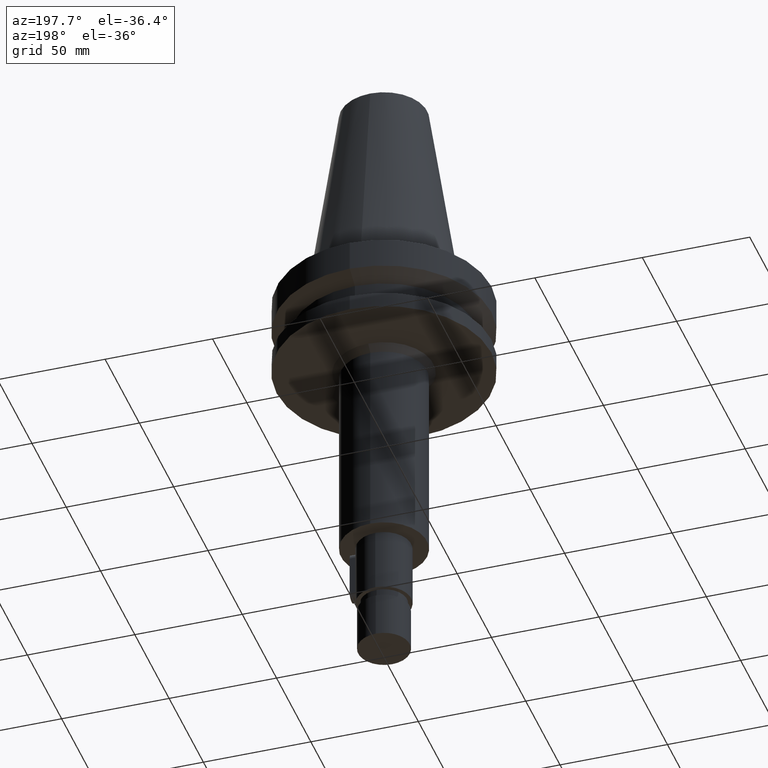
[diagram: clean part render]
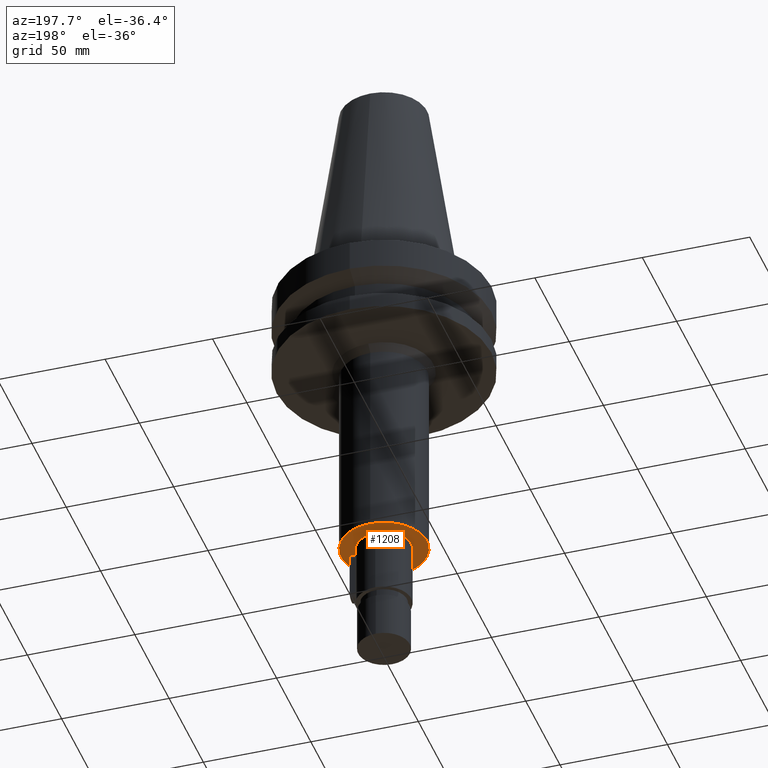
[diagram: same view with one face highlighted and labeled with its STEP entity id]
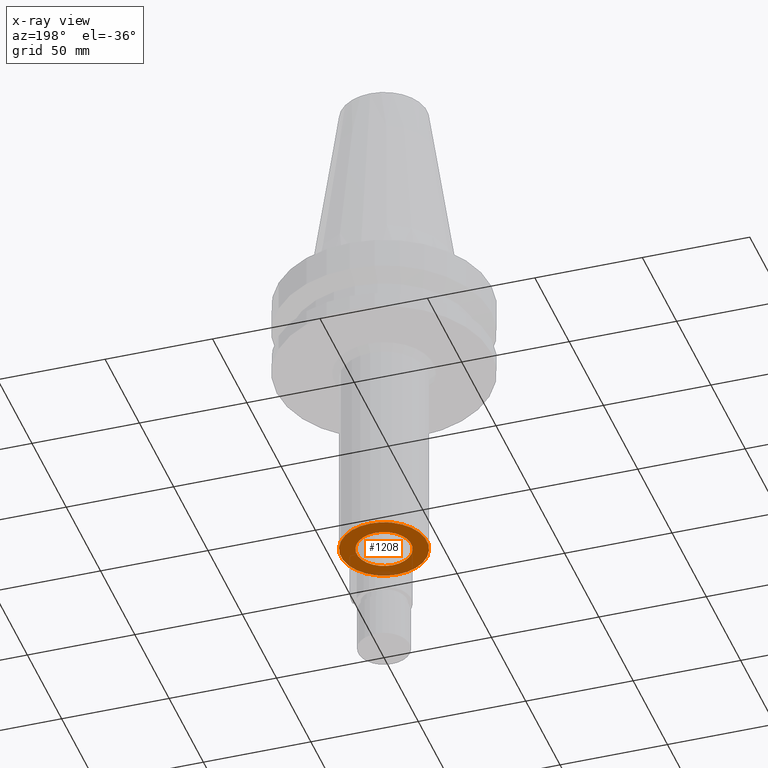
[diagram: x-ray of the same camera — body ghosted, the highlighted face saturated]
A machine part, auxiliary view. The second image highlights one B-rep face of the part: STEP entity #1208.
The next image is the same camera in x-ray: the body ghosted, the highlighted face saturated — about 4% of this face is hidden behind the body in this view.
In plain terms, the highlighted planar face has unit normal (0, 0, -1).
Its self-contained STEP definition (entity closure, byte-faithful):
#412=CARTESIAN_POINT('',(0.E0,2.650013208675E-14,-1.35E2));
#413=DIRECTION('',(0.E0,0.E0,1.E0));
#414=DIRECTION('',(0.E0,1.E0,0.E0));
#415=AXIS2_PLACEMENT_3D('',#412,#413,#414);
#420=CARTESIAN_POINT('',(0.E0,2.650013208675E-14,-1.35E2));
#421=DIRECTION('',(0.E0,0.E0,1.E0));
#422=DIRECTION('',(0.E0,-1.E0,0.E0));
#423=AXIS2_PLACEMENT_3D('',#420,#421,#422);
#428=CARTESIAN_POINT('',(0.E0,2.650013208675E-14,-1.35E2));
#429=DIRECTION('',(0.E0,0.E0,-1.E0));
#430=DIRECTION('',(0.E0,1.E0,0.E0));
#431=AXIS2_PLACEMENT_3D('',#428,#429,#430);
#436=CARTESIAN_POINT('',(0.E0,2.650013208675E-14,-1.35E2));
#437=DIRECTION('',(0.E0,0.E0,-1.E0));
#438=DIRECTION('',(0.E0,-1.E0,0.E0));
#439=AXIS2_PLACEMENT_3D('',#436,#437,#438);
#762=CARTESIAN_POINT('',(0.E0,2.E1,-1.35E2));
#763=VERTEX_POINT('',#762);
#764=CARTESIAN_POINT('',(0.E0,-2.E1,-1.35E2));
#765=VERTEX_POINT('',#764);
#766=CARTESIAN_POINT('',(0.E0,1.27E1,-1.35E2));
#767=CARTESIAN_POINT('',(0.E0,-1.27E1,-1.35E2));
#768=VERTEX_POINT('',#766);
#769=VERTEX_POINT('',#767);
#1193=CARTESIAN_POINT('',(0.E0,0.E0,-1.35E2));
#1194=DIRECTION('',(0.E0,0.E0,-1.E0));
#1195=DIRECTION('',(0.E0,-1.E0,0.E0));
#1196=AXIS2_PLACEMENT_3D('',#1193,#1194,#1195);
#1197=PLANE('',#1196);
#1198=ORIENTED_EDGE('',*,*,#1175,.T.);
#1199=ORIENTED_EDGE('',*,*,#1186,.T.);
#1200=EDGE_LOOP('',(#1198,#1199));
#1201=FACE_OUTER_BOUND('',#1200,.F.);
#1203=ORIENTED_EDGE('',*,*,#1202,.T.);
#1205=ORIENTED_EDGE('',*,*,#1204,.T.);
#1206=EDGE_LOOP('',(#1203,#1205));
#1207=FACE_BOUND('',#1206,.F.);
#416=CIRCLE('',#415,2.E1);
#424=CIRCLE('',#423,2.E1);
#432=CIRCLE('',#431,1.27E1);
#440=CIRCLE('',#439,1.27E1);
#1175=EDGE_CURVE('',#763,#765,#416,.T.);
#1186=EDGE_CURVE('',#765,#763,#424,.T.);
#1202=EDGE_CURVE('',#768,#769,#432,.T.);
#1204=EDGE_CURVE('',#769,#768,#440,.T.);
#1208=ADVANCED_FACE('',(#1201,#1207),#1197,.T.);